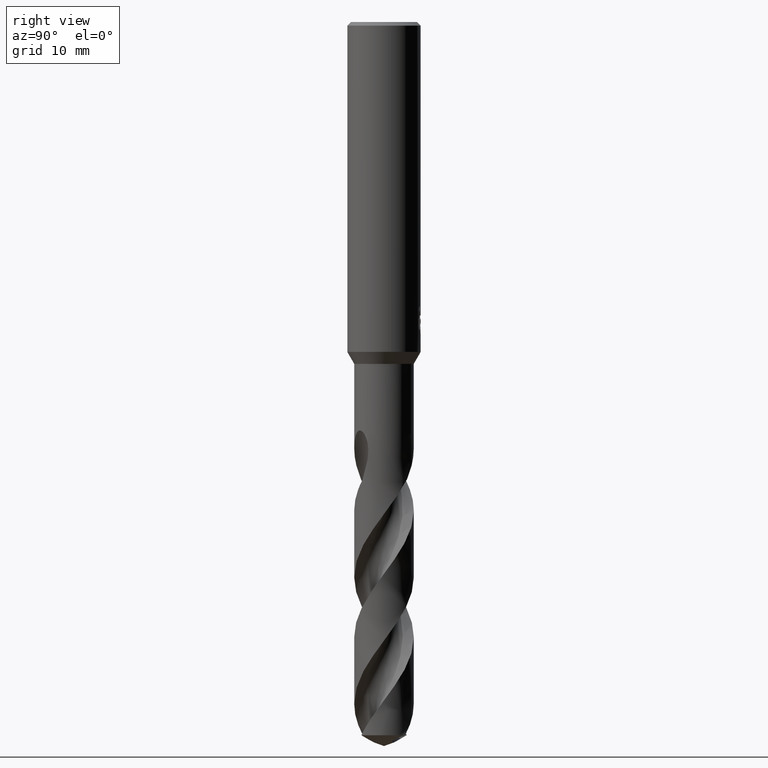
[diagram: clean part render]
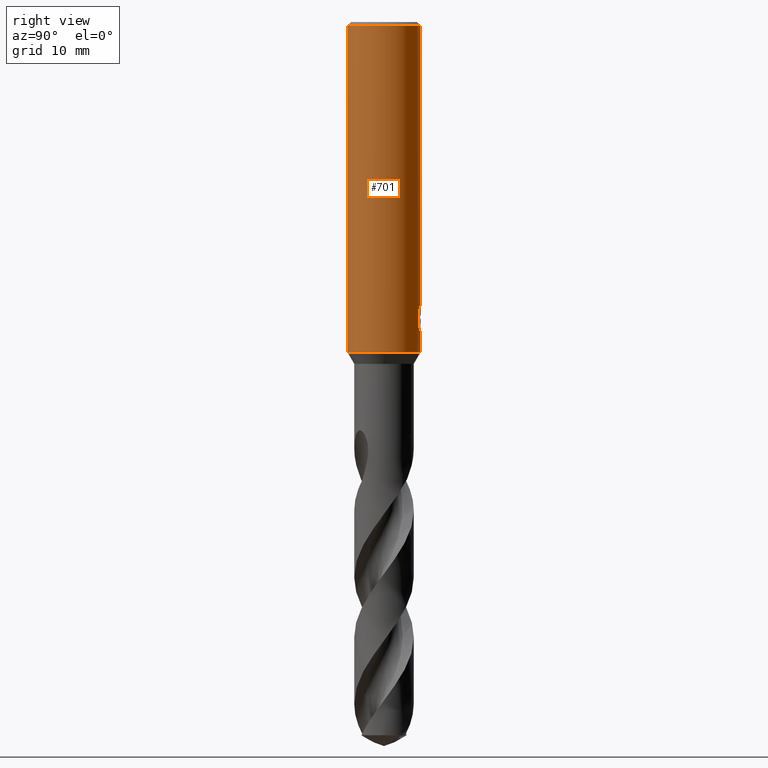
[diagram: same view with one face highlighted and labeled with its STEP entity id]
A machine part, right view. The second image highlights one B-rep face of the part: STEP entity #701.
In plain terms, the highlighted cylindrical surface (partial cylindrical patch) has radius 4 mm, axis along (-0, -0, 1).
Its self-contained STEP definition (entity closure, byte-faithful):
#271=VERTEX_POINT('',#763);
#331=VERTEX_POINT('',#831);
#389=EDGE_CURVE('',#549,#471,#890,.T.);
#417=EDGE_CURVE('',#445,#637,#920,.T.);
#441=EDGE_CURVE('',#733,#445,#946,.T.);
#445=VERTEX_POINT('',#950);
#451=VERTEX_POINT('',#957);
#459=EDGE_CURVE('',#549,#331,#967,.T.);
#471=VERTEX_POINT('',#980);
#487=EDGE_CURVE('',#491,#331,#998,.T.);
#491=VERTEX_POINT('',#1002);
#507=EDGE_CURVE('',#637,#667,#1019,.T.);
#515=EDGE_CURVE('',#733,#519,#1027,.T.);
#519=VERTEX_POINT('',#1032);
#523=EDGE_CURVE('',#519,#689,#1036,.T.);
#549=VERTEX_POINT('',#1066);
#557=EDGE_CURVE('',#271,#451,#1075,.T.);
#581=EDGE_CURVE('',#451,#491,#1100,.T.);
#637=VERTEX_POINT('',#1160);
#641=EDGE_CURVE('',#689,#471,#1164,.T.);
#657=EDGE_CURVE('',#667,#271,#1180,.T.);
#667=VERTEX_POINT('',#1190);
#689=VERTEX_POINT('',#1216);
#701=ADVANCED_FACE('',(#1229),#1230,.T.);
#733=VERTEX_POINT('',#1265);
#763=CARTESIAN_POINT('',(1.33721006514658,3.76986329217263,-33.2901657003257));
#831=CARTESIAN_POINT('',(0.0,4.0,-32.0232688117743));
#890=CIRCLE('',#1945,4.0);
#920=ELLIPSE('',#2316,12.1919782934791,4.0);
#946=B_SPLINE_CURVE_WITH_KNOTS('',3,(#2474,#2475,#2476,#2477,#2478,#2479,#2480,#2481,#2482,#2483,#2484,#2485,#2486,#2487,#2488,#2489),.UNSPECIFIED.,.F.,.F.,(4,2,2,2,2,2,2,4),(5.59330412183837,6.21519943861119,6.52611580040833,6.83703216220547,7.14794852400261,7.45886488579976,7.76904377517712,8.07922266455448),.UNSPECIFIED.);
#950=CARTESIAN_POINT('',(0.29010312703583,3.98946615171554,-33.9998328990228));
#957=CARTESIAN_POINT('',(1.33721006514658,3.76986329217263,-31.5150484364821));
#967=LINE('',#2514,#2515);
#980=CARTESIAN_POINT('',(4.89842541528951E-016,-4.0,-0.399999999999999));
#998=B_SPLINE_CURVE_WITH_KNOTS('',3,(#2656,#2657,#2658,#2659,#2660,#2661,#2662,#2663,#2664,#2665,#2666,#2667,#2668,#2669,#2670,#2671,#2672,#2673,#2674,#2675,#2676,#2677,#2678,#2679,#2680,#2681,#2682),.UNSPECIFIED.,.F.,.F.,(4,2,3,2,2,2,2,2,2,2,2,2,4),(-0.543018145553855,-0.271509072776928,0.0,0.271509072776927,0.543018145553855,0.815414280910791,1.08781041626773,1.35870467547365,1.62959893467958,1.90093601549038,2.17227309630118,2.44361017711198,2.71494725792278),.UNSPECIFIED.);
#1002=CARTESIAN_POINT('',(0.799431726384364,3.91929954390451,-31.000000276873));
#1019=LINE('',#2743,#2744);
#1027=LINE('',#2756,#2757);
#1032=CARTESIAN_POINT('',(0.0,4.0,-36.0));
#1036=CIRCLE('',#2787,4.0);
#1066=CARTESIAN_POINT('',(0.0,4.0,-0.399999999999999));
#1075=LINE('',#4163,#4164);
#1100=B_SPLINE_CURVE_WITH_KNOTS('',3,(#4302,#4303,#4304,#4305,#4306,#4307,#4308,#4309,#4310,#4311),.UNSPECIFIED.,.F.,.F.,(4,2,2,2,4),(0.621618550720989,0.932427826081483,1.24323710144198,1.55341597198189,1.8635948425218),.UNSPECIFIED.);
#1160=CARTESIAN_POINT('',(0.873560781758957,3.90344611344549,-32.3198931596091));
#1164=LINE('',#4505,#4506);
#1180=B_SPLINE_CURVE_WITH_KNOTS('',3,(#4669,#4670,#4671,#4672,#4673,#4674,#4675,#4676,#4677,#4678),.UNSPECIFIED.,.F.,.F.,(4,2,2,2,4),(8.07922159159579,8.38940045176896,8.69957931194214,9.01038857642139,9.32119784090064),.UNSPECIFIED.);
#1190=CARTESIAN_POINT('',(0.873560781758956,3.90344611344549,-33.7587351791531));
#1216=CARTESIAN_POINT('',(4.89842541528951E-016,-4.0,-36.0));
#1229=FACE_OUTER_BOUND('',#4927,.T.);
#1230=CYLINDRICAL_SURFACE('',#4928,4.0);
#1265=CARTESIAN_POINT('',(-6.37761657961682E-016,4.0,-34.0310253601033));
#1945=AXIS2_PLACEMENT_3D('',#5366,#5367,#5368);
#2316=AXIS2_PLACEMENT_3D('',#5387,#5388,#5389);
#2474=CARTESIAN_POINT('',(-1.53169074080201,3.69512157777541,-33.0291469804961));
#2475=CARTESIAN_POINT('',(-1.44828662161398,3.72969396308271,-33.2292685117474));
#2476=CARTESIAN_POINT('',(-1.3235119204923,3.77766697431007,-33.4106519059977));
#2477=CARTESIAN_POINT('',(-1.10876972720289,3.84398770228913,-33.6255223555534));
#2478=CARTESIAN_POINT('',(-1.02784628500841,3.86675406900514,-33.6929304922165));
#2479=CARTESIAN_POINT('',(-0.851215741256186,3.9094356085587,-33.8121513963803));
#2480=CARTESIAN_POINT('',(-0.755506440008018,3.92931563110609,-33.8639734861066));
#2481=CARTESIAN_POINT('',(-0.55516132520436,3.96258844897707,-33.9475385932463));
#2482=CARTESIAN_POINT('',(-0.450345578096092,3.97598591776774,-33.9793474763458));
#2483=CARTESIAN_POINT('',(-0.238765831475676,3.99427916347003,-34.0212208804589));
#2484=CARTESIAN_POINT('',(-0.131998351317953,3.99916459194608,-34.0312723335086));
#2485=CARTESIAN_POINT('',(0.0750281946656646,4.00063255933723,-34.0312723335086));
#2486=CARTESIAN_POINT('',(0.181611397509719,3.99727906083033,-34.0212676362976));
#2487=CARTESIAN_POINT('',(0.392937729655654,3.98206259750675,-33.9795209106323));
#2488=CARTESIAN_POINT('',(0.497684032548134,3.97021008398904,-33.9477911393989));
#2489=CARTESIAN_POINT('',(0.597825841435798,3.9550732310934,-33.9060826866649));
#2514=CARTESIAN_POINT('',(-4.89842541528951E-016,4.0,-18.2));
#2515=VECTOR('',#5449,1.0);
#2656=CARTESIAN_POINT('',(0.665279195004375,3.9442874632428,-30.8137529884524));
#2657=CARTESIAN_POINT('',(0.72877088492158,3.9335783806135,-30.8773526603125));
#2658=CARTESIAN_POINT('',(0.783944488018489,3.92260552826083,-30.957920893425));
#2659=CARTESIAN_POINT('',(0.857267073993339,3.90723639918054,-31.134802544027));
#2660=CARTESIAN_POINT('',(0.875400981188567,3.90303383563787,-31.2311389883278));
#2661=CARTESIAN_POINT('',(0.875400981188567,3.90303383563787,-31.3216420125868));
#2662=CARTESIAN_POINT('',(0.875400981188567,3.90303383563787,-31.4121450368458));
#2663=CARTESIAN_POINT('',(0.857267073993339,3.90723639918054,-31.5084814811466));
#2664=CARTESIAN_POINT('',(0.783944488018488,3.92260552826083,-31.6853631317485));
#2665=CARTESIAN_POINT('',(0.728770884921581,3.9335783806135,-31.765931364861));
#2666=CARTESIAN_POINT('',(0.601580067811904,3.95503153411898,-31.8933384986505));
#2667=CARTESIAN_POINT('',(0.520902117238449,3.96693827151805,-31.9487071231089));
#2668=CARTESIAN_POINT('',(0.343752086871948,3.98619778335453,-32.0223037477669));
#2669=CARTESIAN_POINT('',(0.247255556938652,3.99338316413851,-32.0405166027747));
#2670=CARTESIAN_POINT('',(0.0662974670001867,4.00046977119903,-32.0405166027747));
#2671=CARTESIAN_POINT('',(-0.0299674229107091,4.00086780861984,-32.0224830783564));
#2672=CARTESIAN_POINT('',(-0.206991592502204,3.99562207288533,-31.9491870835923));
#2673=CARTESIAN_POINT('',(-0.287758268875903,3.99014940483369,-31.8939303320089));
#2674=CARTESIAN_POINT('',(-0.415384305359873,3.97889009382894,-31.7664425414649));
#2675=CARTESIAN_POINT('',(-0.470753835570468,3.9723749730993,-31.6856442592887));
#2676=CARTESIAN_POINT('',(-0.544239101864661,3.96297563900076,-31.5084730190186));
#2677=CARTESIAN_POINT('',(-0.562348199187247,3.96027328638705,-31.4120877061904));
#2678=CARTESIAN_POINT('',(-0.562348199187247,3.96027328638705,-31.2311963189832));
#2679=CARTESIAN_POINT('',(-0.544239101864661,3.96297563900076,-31.134811006155));
#2680=CARTESIAN_POINT('',(-0.470753835570468,3.9723749730993,-30.9576397658849));
#2681=CARTESIAN_POINT('',(-0.415384305359873,3.97889009382894,-30.8768414837086));
#2682=CARTESIAN_POINT('',(-0.351519173230209,3.98452434687649,-30.8130455309993));
#2743=CARTESIAN_POINT('',(0.873560781758957,3.90344611344549,-33.0393141693811));
#2744=VECTOR('',#5510,1.0);
#2756=CARTESIAN_POINT('',(-4.89842541528951E-016,4.0,-18.2));
#2757=VECTOR('',#5520,1.0);
#2787=AXIS2_PLACEMENT_3D('',#5530,#5531,#5532);
#4163=CARTESIAN_POINT('',(1.33721006514658,3.76986329217263,-32.4026070684039));
#4164=VECTOR('',#5583,1.0);
#4302=CARTESIAN_POINT('',(1.47492143493287,3.71814560779639,-31.7759604553563));
#4303=CARTESIAN_POINT('',(1.43317985453682,3.73470372211652,-31.6758249567768));
#4304=CARTESIAN_POINT('',(1.38139934199221,3.7544274523428,-31.5801212011595));
#4305=CARTESIAN_POINT('',(1.26216864159784,3.79617175011376,-31.4033868968692));
#4306=CARTESIAN_POINT('',(1.1947060468711,3.8181497487877,-31.3223546663791));
#4307=CARTESIAN_POINT('',(1.0513319169546,3.86008660392055,-31.1790629248092));
#4308=CARTESIAN_POINT('',(0.970367433401024,3.88157055479408,-31.1117010969221));
#4309=CARTESIAN_POINT('',(0.793686081906958,3.92151314302242,-30.9925943353462));
#4310=CARTESIAN_POINT('',(0.697967348067752,3.93993643158254,-30.9408403180509));
#4311=CARTESIAN_POINT('',(0.597825544213158,3.95507327601983,-30.8991318677171));
#4505=CARTESIAN_POINT('',(4.89842541528951E-016,-4.0,-18.2));
#4506=VECTOR('',#5673,1.0);
#4669=CARTESIAN_POINT('',(0.597825566619951,3.95507327263295,-33.9060822529338));
#4670=CARTESIAN_POINT('',(0.69796736707036,3.93993642812991,-33.8643738039892));
#4671=CARTESIAN_POINT('',(0.793686097648071,3.92151313976681,-33.8126197884223));
#4672=CARTESIAN_POINT('',(0.970367443122637,3.8815705522933,-33.6935130308195));
#4673=CARTESIAN_POINT('',(1.05133192391794,3.86008660197544,-33.6261512051772));
#4674=CARTESIAN_POINT('',(1.19470604884202,3.81814974811935,-33.4828594684698));
#4675=CARTESIAN_POINT('',(1.26216864117972,3.79617175021539,-33.401827240791));
#4676=CARTESIAN_POINT('',(1.38139933735972,3.75442745400946,-33.2250929426288));
#4677=CARTESIAN_POINT('',(1.43317984807825,3.73470372457547,-33.1293891903286));
#4678=CARTESIAN_POINT('',(1.47492142700079,3.7181456109429,-33.0292536952238));
#4927=EDGE_LOOP('',(#5729,#5730,#5731,#5732,#5733,#5734,#5735,#5736,#5737,#5738,#5739,#5740));
#4928=AXIS2_PLACEMENT_3D('',#5741,#5742,#5743);
#5366=CARTESIAN_POINT('',(0.0,0.0,-0.399999999999999));
#5367=DIRECTION('',(0.0,0.0,-1.0));
#5368=DIRECTION('',(0.0,1.0,0.0));
#5387=CARTESIAN_POINT('',(0.0,0.0,-34.8351219173269));
#5388=DIRECTION('',(0.944648353914092,0.0,-0.328084573619969));
#5389=DIRECTION('',(0.328084573619968,-0.0,0.944648353914092));
#5449=DIRECTION('',(0.0,0.0,-1.0));
#5510=DIRECTION('',(0.0,0.0,-1.0));
#5520=DIRECTION('',(0.0,0.0,-1.0));
#5530=CARTESIAN_POINT('',(0.0,0.0,-36.0));
#5531=DIRECTION('',(0.0,0.0,-1.0));
#5532=DIRECTION('',(0.0,1.0,0.0));
#5583=DIRECTION('',(-0.0,-0.0,1.0));
#5673=DIRECTION('',(-0.0,-0.0,1.0));
#5729=ORIENTED_EDGE('',*,*,#459,.F.);
#5730=ORIENTED_EDGE('',*,*,#389,.T.);
#5731=ORIENTED_EDGE('',*,*,#641,.F.);
#5732=ORIENTED_EDGE('',*,*,#523,.F.);
#5733=ORIENTED_EDGE('',*,*,#515,.F.);
#5734=ORIENTED_EDGE('',*,*,#441,.T.);
#5735=ORIENTED_EDGE('',*,*,#417,.T.);
#5736=ORIENTED_EDGE('',*,*,#507,.T.);
#5737=ORIENTED_EDGE('',*,*,#657,.T.);
#5738=ORIENTED_EDGE('',*,*,#557,.T.);
#5739=ORIENTED_EDGE('',*,*,#581,.T.);
#5740=ORIENTED_EDGE('',*,*,#487,.T.);
#5741=CARTESIAN_POINT('',(0.0,0.0,-18.2));
#5742=DIRECTION('',(-0.0,-0.0,1.0));
#5743=DIRECTION('',(0.0,1.0,0.0));